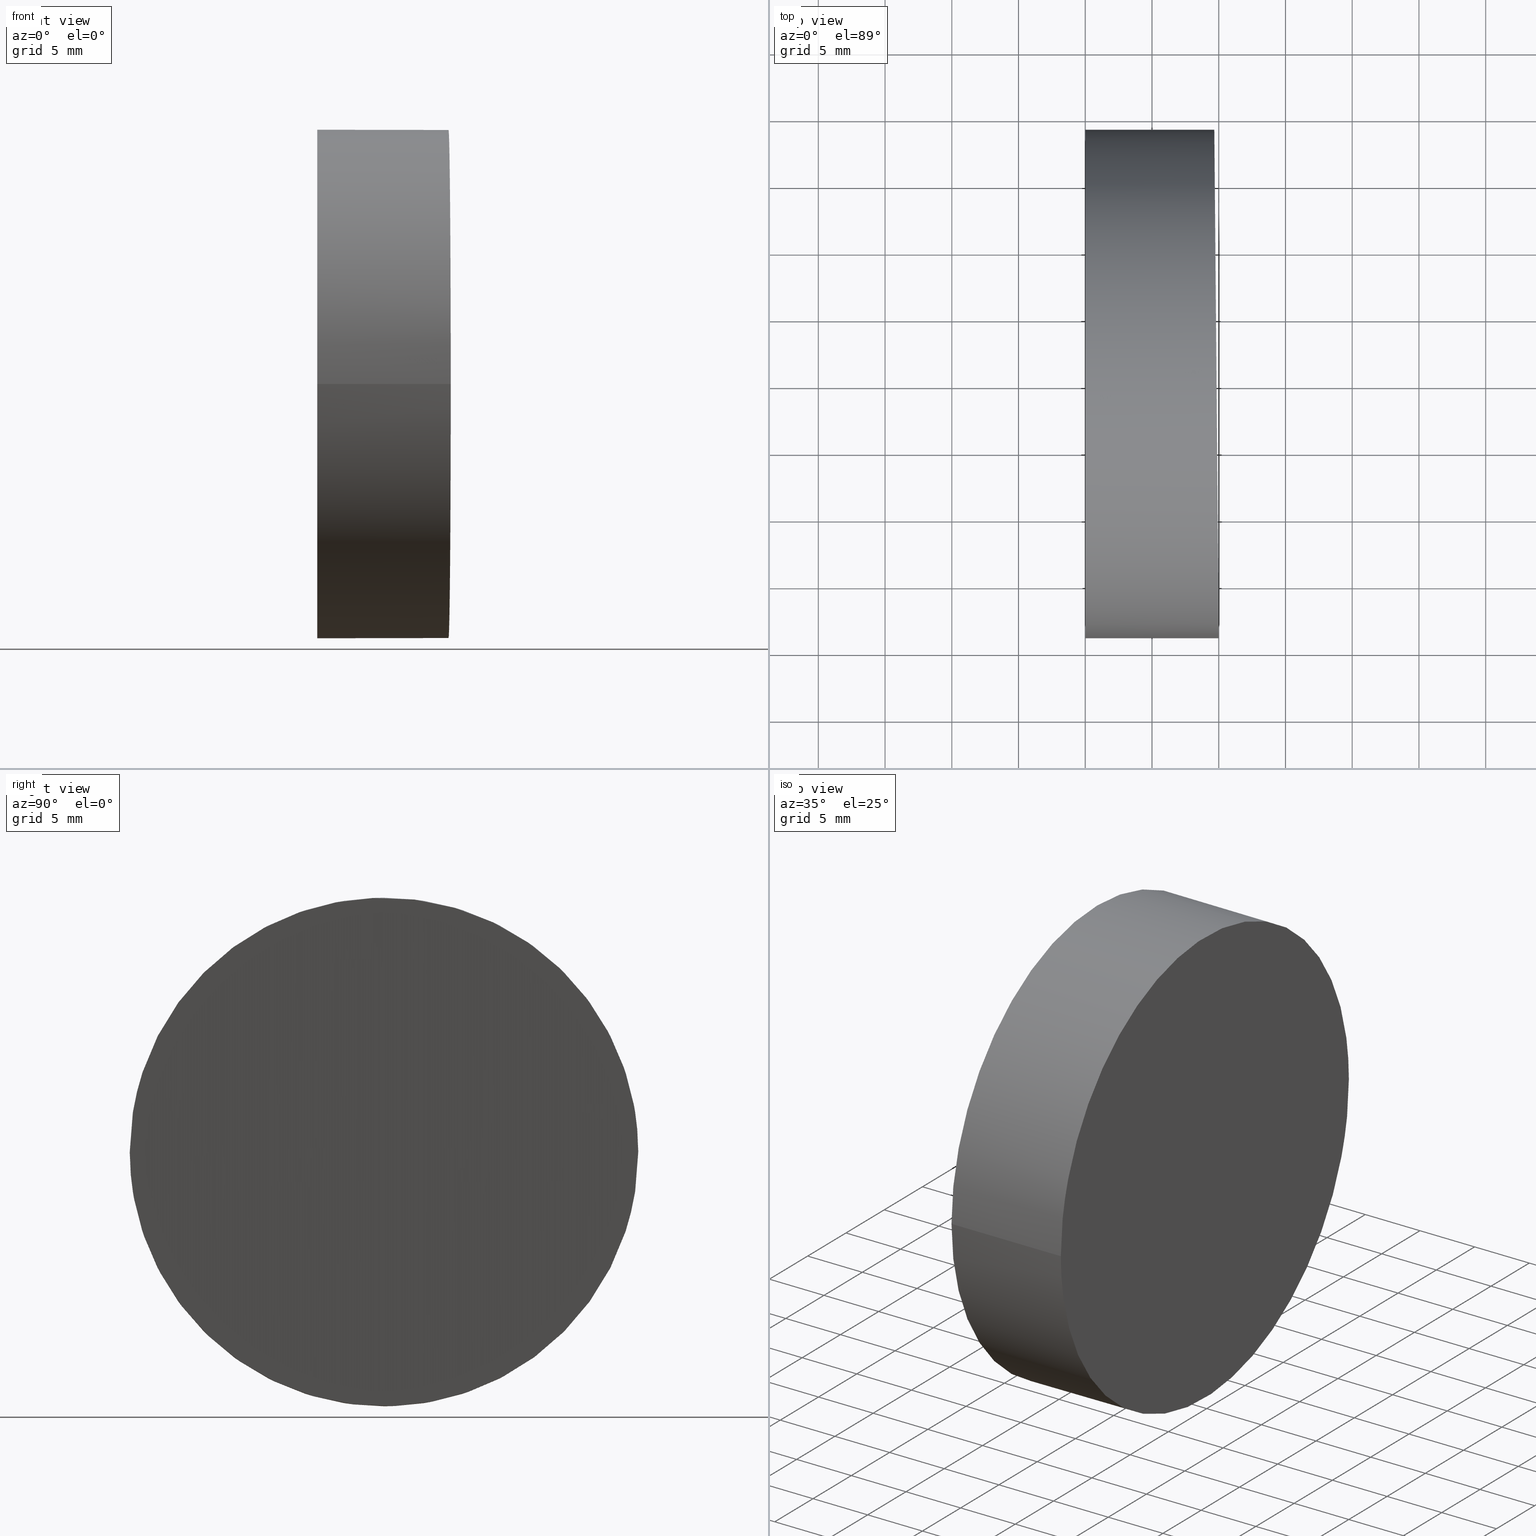
[diagram: canonical four-view strip — front | top / right | iso, engineering-drawing reading convention]
A machine part, canonical four-view strip (front | top / right | iso — engineering-drawing reading convention). The complete STEP part file that produces these views, byte-faithful:
ISO-10303-21;
HEADER;
FILE_DESCRIPTION (( 'STEP AP214' ),
    '1' );
FILE_NAME ('197504.STEP',
    '2019-07-08T06:15:49',
    ( 'user' ),
    ( '΢���й�' ),
    'SwSTEP 2.0',
    'SolidWorks 2016',
    '' );
FILE_SCHEMA (( 'AUTOMOTIVE_DESIGN' ));
ENDSEC;

DATA;
#1 = DIRECTION ( 'NONE',  ( 1.224646799147353500E-016, -1.000000000000000000, 0.0000000000000000000 ) ) ;
#2 = SHAPE_DEFINITION_REPRESENTATION ( #91, #105 ) ;
#3 = MECHANICAL_DESIGN_GEOMETRIC_PRESENTATION_REPRESENTATION (  '', ( #80 ), #34 ) ;
#4 =( NAMED_UNIT ( * ) PLANE_ANGLE_UNIT ( ) SI_UNIT ( $, .RADIAN. ) );
#5 = VECTOR ( 'NONE', #108, 1000.000000000000000 ) ;
#6 = CARTESIAN_POINT ( 'NONE',  ( 0.0000000000000000000, -1.880790961315660000E-034, 19.05000000000000100 ) ) ;
#7 = ORIENTED_EDGE ( 'NONE', *, *, #114, .T. ) ;
#8 = FILL_AREA_STYLE_COLOUR ( '', #121 ) ;
#9 = VERTEX_POINT ( 'NONE', #20 ) ;
#10 = MECHANICAL_DESIGN_GEOMETRIC_PRESENTATION_REPRESENTATION (  '', ( #89 ), #139 ) ;
#11 = FILL_AREA_STYLE ('',( #8 ) ) ;
#12 = EDGE_LOOP ( 'NONE', ( #45, #56, #25, #130 ) ) ;
#13 = DIRECTION ( 'NONE',  ( 0.008726535498366980200, -0.9999619230641713100, 0.0000000000000000000 ) ) ;
#14 = APPLICATION_CONTEXT ( 'automotive_design' ) ;
#15 = CARTESIAN_POINT ( 'NONE',  ( 10.00000000000000500, -19.04999999999999700, -19.04999999999999700 ) ) ;
#16 = EDGE_LOOP ( 'NONE', ( #110, #57, #95, #94 ) ) ;
#17 = CARTESIAN_POINT ( 'NONE',  ( 10.00000000000000400, -19.04999999999999700, 19.05000000000000100 ) ) ;
#18 = DIRECTION ( 'NONE',  ( 9.106159978880878600E-017, -1.000000000000000000, 0.0000000000000000000 ) ) ;
#19 = PLANE ( 'NONE',  #106 ) ;
#20 = CARTESIAN_POINT ( 'NONE',  ( -2.332952152375708000E-015, 19.04999999999999700, 19.05000000000000400 ) ) ;
#21 = CARTESIAN_POINT ( 'NONE',  ( 10.00000000000000000, 1.224646799147353300E-015, 19.05000000000000100 ) ) ;
#22 = AXIS2_PLACEMENT_3D ( 'NONE', #6, #33, #1 ) ;
#23 =( NAMED_UNIT ( * ) PLANE_ANGLE_UNIT ( ) SI_UNIT ( $, .RADIAN. ) );
#24 = SURFACE_STYLE_USAGE ( .BOTH. , #111 ) ;
#25 = ORIENTED_EDGE ( 'NONE', *, *, #79, .T. ) ;
#26 = CARTESIAN_POINT ( 'NONE',  ( 9.667506337172358900, 19.04999999999999700, 19.05000000000000400 ) ) ;
#27 = EDGE_CURVE ( 'NONE', #62, #48, #96, .T. ) ;
#28 =( LENGTH_UNIT ( ) NAMED_UNIT ( * ) SI_UNIT ( .MILLI., .METRE. ) );
#29 =( BOUNDED_CURVE ( )  B_SPLINE_CURVE ( 3, ( #122, #60, #140, #26 ),
 .UNSPECIFIED., .F., .F. ) 
 B_SPLINE_CURVE_WITH_KNOTS ( ( 4, 4 ),
 ( 3.141592653589793100, 6.283185307179586200 ),
 .UNSPECIFIED. ) 
 CURVE ( )  GEOMETRIC_REPRESENTATION_ITEM ( )  RATIONAL_B_SPLINE_CURVE ( ( 1.000000000000000000, 0.3333333333333333700, 0.3333333333333333700, 1.000000000000000000 ) ) 
 REPRESENTATION_ITEM ( '' )  );
#30 = DIRECTION ( 'NONE',  ( -1.000000000000000000, -1.224646799147353500E-016, 1.232595164407830900E-032 ) ) ;
#31 = ADVANCED_FACE ( 'NONE', ( #125 ), #19, .F. ) ;
#32 = PLANE ( 'NONE',  #102 ) ;
#33 = DIRECTION ( 'NONE',  ( -1.000000000000000000, -1.224646799147353500E-016, 1.232595164407830900E-032 ) ) ;
#34 =( GEOMETRIC_REPRESENTATION_CONTEXT ( 3 ) GLOBAL_UNCERTAINTY_ASSIGNED_CONTEXT ( ( #67 ) ) GLOBAL_UNIT_ASSIGNED_CONTEXT ( ( #76, #124, #37 ) ) REPRESENTATION_CONTEXT ( 'NONE', 'WORKASPACE' ) );
#35 = PRODUCT_DEFINITION_CONTEXT ( 'detailed design', #14, 'design' ) ;
#36 = FACE_OUTER_BOUND ( 'NONE', #16, .T. ) ;
#37 =( NAMED_UNIT ( * ) SI_UNIT ( $, .STERADIAN. ) SOLID_ANGLE_UNIT ( ) );
#38 = FACE_OUTER_BOUND ( 'NONE', #51, .T. ) ;
#39 = FACE_OUTER_BOUND ( 'NONE', #12, .T. ) ;
#40 = EDGE_CURVE ( 'NONE', #62, #9, #107, .T. ) ;
#41 = ORIENTED_EDGE ( 'NONE', *, *, #131, .T. ) ;
#42 = SURFACE_SIDE_STYLE ('',( #132 ) ) ;
#43 = CARTESIAN_POINT ( 'NONE',  ( 9.667506337172358900, 19.04999999999999700, 19.05000000000000400 ) ) ;
#44 = CARTESIAN_POINT ( 'NONE',  ( -1.196457352797802100E-015, 19.04999999999999700, 38.10000000000000100 ) ) ;
#45 = ORIENTED_EDGE ( 'NONE', *, *, #40, .F. ) ;
#46 = PRESENTATION_LAYER_ASSIGNMENT (  '', '', ( #89 ) ) ;
#47 = PRESENTATION_STYLE_ASSIGNMENT (( #24 ) ) ;
#48 = VERTEX_POINT ( 'NONE', #17 ) ;
#49 = CARTESIAN_POINT ( 'NONE',  ( 10.00000000000000000, 1.224646799147353300E-015, 19.05000000000000100 ) ) ;
#50 = PRODUCT_DEFINITION ( 'δ֪', '', #112, #35 ) ;
#51 = EDGE_LOOP ( 'NONE', ( #7, #41 ) ) ;
#52 = FILL_AREA_STYLE_COLOUR ( '', #138 ) ;
#53 = ADVANCED_FACE ( 'NONE', ( #38 ), #32, .F. ) ;
#54 = AXIS2_PLACEMENT_3D ( 'NONE', #49, #61, #65 ) ;
#55 = SURFACE_STYLE_FILL_AREA ( #11 ) ;
#56 = ORIENTED_EDGE ( 'NONE', *, *, #27, .T. ) ;
#57 = ORIENTED_EDGE ( 'NONE', *, *, #40, .T. ) ;
#58 = APPLICATION_PROTOCOL_DEFINITION ( 'draft international standard', 'automotive_design', 1998, #14 ) ;
#59 = PRESENTATION_LAYER_ASSIGNMENT (  '', '', ( #80 ) ) ;
#60 = CARTESIAN_POINT ( 'NONE',  ( 10.00000000000000500, -19.05000000000000400, 57.14999999999999900 ) ) ;
#61 = DIRECTION ( 'NONE',  ( -1.000000000000000000, -1.224646799147353200E-016, -0.0000000000000000000 ) ) ;
#62 = VERTEX_POINT ( 'NONE', #74 ) ;
#63 = DIRECTION ( 'NONE',  ( 1.224646799147353500E-016, -1.000000000000000000, 0.0000000000000000000 ) ) ;
#64 = ADVANCED_FACE ( 'NONE', ( #39 ), #129, .T. ) ;
#65 = DIRECTION ( 'NONE',  ( 9.106159978880878600E-017, -1.000000000000000000, 0.0000000000000000000 ) ) ;
#66 = UNCERTAINTY_MEASURE_WITH_UNIT (LENGTH_MEASURE( 1.000000000000000100E-005 ), #28, 'distance_accuracy_value', 'NONE');
#67 = UNCERTAINTY_MEASURE_WITH_UNIT (LENGTH_MEASURE( 1.000000000000000100E-005 ), #76, 'distance_accuracy_value', 'NONE');
#68 = CLOSED_SHELL ( 'NONE', ( #72, #53, #31, #64 ) ) ;
#69 = CARTESIAN_POINT ( 'NONE',  ( 10.00000000000000500, -19.05000000000000400, 38.10000000000000100 ) ) ;
#70 = DIRECTION ( 'NONE',  ( -1.000000000000000000, -1.224646799147353200E-016, -0.0000000000000000000 ) ) ;
#71 = SURFACE_STYLE_USAGE ( .BOTH. , #42 ) ;
#72 = ADVANCED_FACE ( 'NONE', ( #36 ), #117, .T. ) ;
#73 = FILL_AREA_STYLE ('',( #52 ) ) ;
#74 = CARTESIAN_POINT ( 'NONE',  ( 9.667506337172358900, 19.04999999999999700, 19.05000000000000400 ) ) ;
#75 = DIRECTION ( 'NONE',  ( 1.000000000000000000, 0.0000000000000000000, 0.0000000000000000000 ) ) ;
#76 =( LENGTH_UNIT ( ) NAMED_UNIT ( * ) SI_UNIT ( .MILLI., .METRE. ) );
#77 = DIRECTION ( 'NONE',  ( -1.224646799147353500E-016, 1.000000000000000000, 0.0000000000000000000 ) ) ;
#78 = AXIS2_PLACEMENT_3D ( 'NONE', #21, #137, #18 ) ;
#79 = EDGE_CURVE ( 'NONE', #48, #82, #86, .T. ) ;
#80 = STYLED_ITEM ( 'NONE', ( #92 ), #105 ) ;
#81 = CARTESIAN_POINT ( 'NONE',  ( 0.0000000000000000000, -1.880790961315660000E-034, 19.05000000000000100 ) ) ;
#82 = VERTEX_POINT ( 'NONE', #126 ) ;
#83 = ORIENTED_EDGE ( 'NONE', *, *, #133, .F. ) ;
#84 =( NAMED_UNIT ( * ) SI_UNIT ( $, .STERADIAN. ) SOLID_ANGLE_UNIT ( ) );
#85 = APPLICATION_CONTEXT ( 'automotive_design' ) ;
#86 = LINE ( 'NONE', #123, #113 ) ;
#87 = CARTESIAN_POINT ( 'NONE',  ( 0.0000000000000000000, 0.0000000000000000000, 0.0000000000000000000 ) ) ;
#88 = APPLICATION_PROTOCOL_DEFINITION ( 'draft international standard', 'automotive_design', 1998, #85 ) ;
#89 = STYLED_ITEM ( 'NONE', ( #47 ), #136 ) ;
#90 = PRODUCT ( '197504', '197504', '', ( #103 ) ) ;
#91 = PRODUCT_DEFINITION_SHAPE ( 'NONE', 'NONE',  #50 ) ;
#92 = PRESENTATION_STYLE_ASSIGNMENT (( #71 ) ) ;
#93 = CIRCLE ( 'NONE', #128, 19.04999999999999700 ) ;
#94 = ORIENTED_EDGE ( 'NONE', *, *, #79, .F. ) ;
#95 = ORIENTED_EDGE ( 'NONE', *, *, #114, .F. ) ;
#96 =( BOUNDED_CURVE ( )  B_SPLINE_CURVE ( 3, ( #43, #99, #15, #115 ),
 .UNSPECIFIED., .F., .T. ) 
 B_SPLINE_CURVE_WITH_KNOTS ( ( 4, 4 ),
 ( 0.0000000000000000000, 3.141592653589793100 ),
 .UNSPECIFIED. ) 
 CURVE ( )  GEOMETRIC_REPRESENTATION_ITEM ( )  RATIONAL_B_SPLINE_CURVE ( ( 1.000000000000000000, 0.3333333333333333700, 0.3333333333333333700, 1.000000000000000000 ) ) 
 REPRESENTATION_ITEM ( '' )  );
#97 = PRODUCT_RELATED_PRODUCT_CATEGORY ( 'part', '', ( #90 ) ) ;
#98 = CARTESIAN_POINT ( 'NONE',  ( 9.999999999999998200, 19.04999999999999700, 19.05000000000000400 ) ) ;
#99 = CARTESIAN_POINT ( 'NONE',  ( 9.667506337172358900, 19.04999999999999700, -19.04999999999999400 ) ) ;
#100 =( NAMED_UNIT ( * ) SI_UNIT ( $, .STERADIAN. ) SOLID_ANGLE_UNIT ( ) );
#101 = CIRCLE ( 'NONE', #22, 19.04999999999999700 ) ;
#102 = AXIS2_PLACEMENT_3D ( 'NONE', #44, #135, #77 ) ;
#103 = PRODUCT_CONTEXT ( 'NONE', #85, 'mechanical' ) ;
#104 = ORIENTED_EDGE ( 'NONE', *, *, #27, .F. ) ;
#105 = ADVANCED_BREP_SHAPE_REPRESENTATION ( '197504', ( #136, #119 ), #116 ) ;
#106 = AXIS2_PLACEMENT_3D ( 'NONE', #69, #134, #13 ) ;
#107 = LINE ( 'NONE', #98, #5 ) ;
#108 = DIRECTION ( 'NONE',  ( -1.000000000000000000, -1.224646799147353200E-016, -0.0000000000000000000 ) ) ;
#109 =( LENGTH_UNIT ( ) NAMED_UNIT ( * ) SI_UNIT ( .MILLI., .METRE. ) );
#110 = ORIENTED_EDGE ( 'NONE', *, *, #133, .T. ) ;
#111 = SURFACE_SIDE_STYLE ('',( #55 ) ) ;
#112 = PRODUCT_DEFINITION_FORMATION_WITH_SPECIFIED_SOURCE ( '�κ�', '', #90, .NOT_KNOWN. ) ;
#113 = VECTOR ( 'NONE', #70, 1000.000000000000000 ) ;
#114 = EDGE_CURVE ( 'NONE', #82, #9, #93, .T. ) ;
#115 = CARTESIAN_POINT ( 'NONE',  ( 10.00000000000000400, -19.04999999999999700, 19.05000000000000100 ) ) ;
#116 =( GEOMETRIC_REPRESENTATION_CONTEXT ( 3 ) GLOBAL_UNCERTAINTY_ASSIGNED_CONTEXT ( ( #66 ) ) GLOBAL_UNIT_ASSIGNED_CONTEXT ( ( #28, #4, #84 ) ) REPRESENTATION_CONTEXT ( 'NONE', 'WORKASPACE' ) );
#117 = CYLINDRICAL_SURFACE ( 'NONE', #78, 19.04999999999999700 ) ;
#118 = EDGE_LOOP ( 'NONE', ( #83, #104 ) ) ;
#119 = AXIS2_PLACEMENT_3D ( 'NONE', #87, #120, #75 ) ;
#120 = DIRECTION ( 'NONE',  ( 0.0000000000000000000, 0.0000000000000000000, 1.000000000000000000 ) ) ;
#121 = COLOUR_RGB ( '',1.000000000000000000, 1.000000000000000000, 1.000000000000000000 ) ;
#122 = CARTESIAN_POINT ( 'NONE',  ( 10.00000000000000400, -19.04999999999999700, 19.05000000000000100 ) ) ;
#123 = CARTESIAN_POINT ( 'NONE',  ( 10.00000000000000200, -19.04999999999999700, 19.05000000000000100 ) ) ;
#124 =( NAMED_UNIT ( * ) PLANE_ANGLE_UNIT ( ) SI_UNIT ( $, .RADIAN. ) );
#125 = FACE_OUTER_BOUND ( 'NONE', #118, .T. ) ;
#126 = CARTESIAN_POINT ( 'NONE',  ( 2.332952152375708000E-015, -19.04999999999999700, 19.05000000000000100 ) ) ;
#127 = UNCERTAINTY_MEASURE_WITH_UNIT (LENGTH_MEASURE( 1.000000000000000100E-005 ), #109, 'distance_accuracy_value', 'NONE');
#128 = AXIS2_PLACEMENT_3D ( 'NONE', #81, #30, #63 ) ;
#129 = CYLINDRICAL_SURFACE ( 'NONE', #54, 19.04999999999999700 ) ;
#130 = ORIENTED_EDGE ( 'NONE', *, *, #131, .F. ) ;
#131 = EDGE_CURVE ( 'NONE', #9, #82, #101, .T. ) ;
#132 = SURFACE_STYLE_FILL_AREA ( #73 ) ;
#133 = EDGE_CURVE ( 'NONE', #48, #62, #29, .T. ) ;
#134 = DIRECTION ( 'NONE',  ( -0.9999619230641714200, -0.008726535498366981900, 0.0000000000000000000 ) ) ;
#135 = DIRECTION ( 'NONE',  ( 1.000000000000000000, 1.224646799147353500E-016, -0.0000000000000000000 ) ) ;
#136 = MANIFOLD_SOLID_BREP ( '�г�-����1', #68 ) ;
#137 = DIRECTION ( 'NONE',  ( -1.000000000000000000, -1.224646799147353200E-016, -0.0000000000000000000 ) ) ;
#138 = COLOUR_RGB ( '',1.000000000000000000, 1.000000000000000000, 1.000000000000000000 ) ;
#139 =( GEOMETRIC_REPRESENTATION_CONTEXT ( 3 ) GLOBAL_UNCERTAINTY_ASSIGNED_CONTEXT ( ( #127 ) ) GLOBAL_UNIT_ASSIGNED_CONTEXT ( ( #109, #23, #100 ) ) REPRESENTATION_CONTEXT ( 'NONE', 'WORKASPACE' ) );
#140 = CARTESIAN_POINT ( 'NONE',  ( 9.667506337172358900, 19.04999999999999700, 57.14999999999999900 ) ) ;
ENDSEC;
END-ISO-10303-21;
